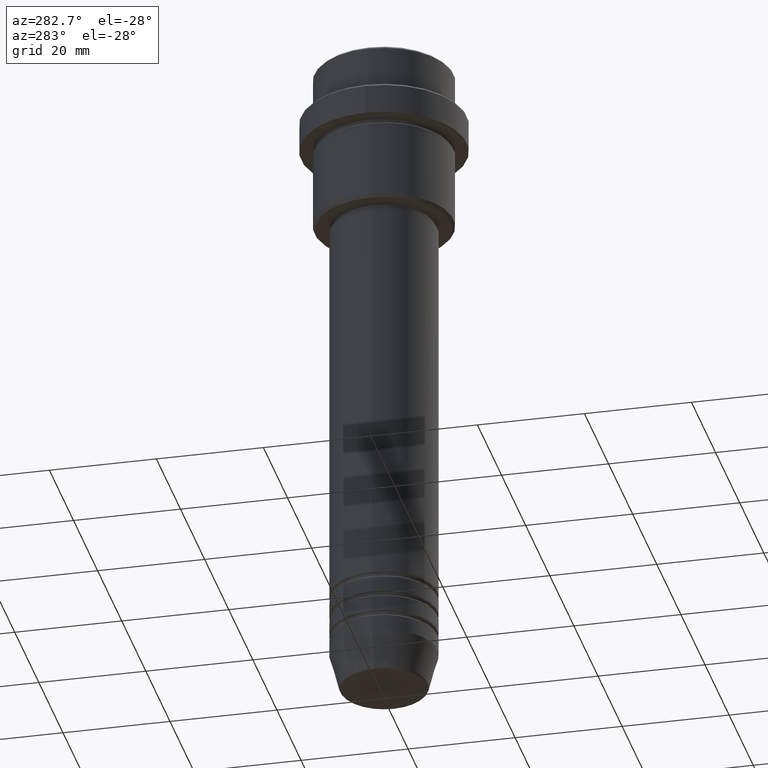
[diagram: clean part render]
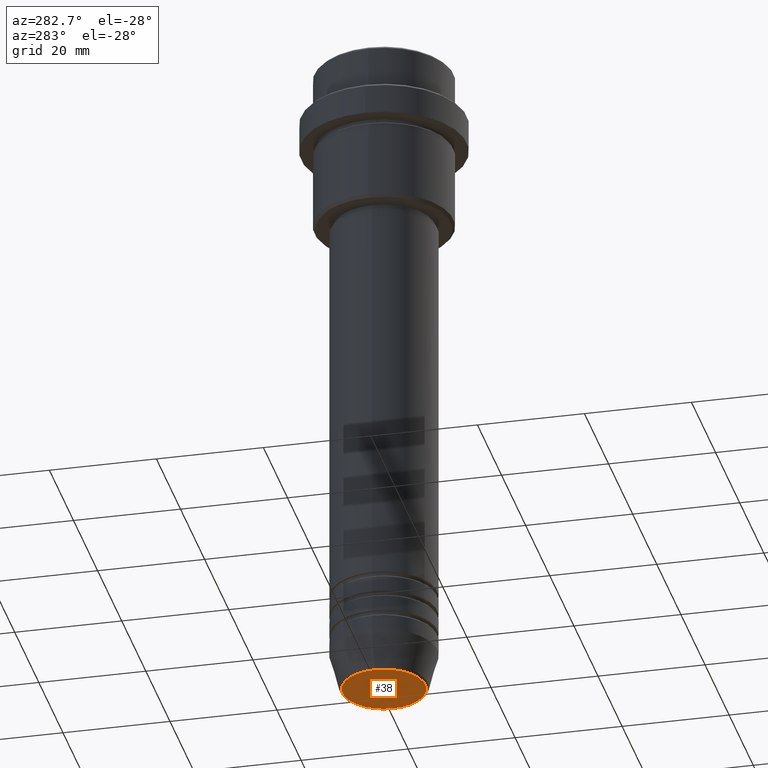
[diagram: same view with one face highlighted and labeled with its STEP entity id]
A machine part, auxiliary view. The second image highlights one B-rep face of the part: STEP entity #38.
In plain terms, the highlighted planar face has unit normal (0, -0, 1).
Its self-contained STEP definition (entity closure, byte-faithful):
#38 = ADVANCED_FACE ( 'NONE', ( #206 ), #1156, .F. ) ;
#114 = DIRECTION ( 'NONE',  ( 0.000000000000000000, -0.000000000000000000, 1.000000000000000000 ) ) ;
#206 = FACE_OUTER_BOUND ( 'NONE', #1219, .T. ) ;
#252 = AXIS2_PLACEMENT_3D ( 'NONE', #895, #688, #1124 ) ;
#339 = DIRECTION ( 'NONE',  ( 1.000000000000000000, 0.000000000000000000, 0.000000000000000000 ) ) ;
#385 = CARTESIAN_POINT ( 'NONE',  ( -7.740692158992654726, 9.775343368540039135E-16, -126.0000000000000000 ) ) ;
#452 = CARTESIAN_POINT ( 'NONE',  ( 7.740692158992654726, 0.000000000000000000, -126.0000000000000000 ) ) ;
#457 = AXIS2_PLACEMENT_3D ( 'NONE', #752, #1313, #339 ) ;
#590 = EDGE_CURVE ( 'NONE', #746, #1414, #731, .T. ) ;
#680 = AXIS2_PLACEMENT_3D ( 'NONE', #1385, #114, #1346 ) ;
#688 = DIRECTION ( 'NONE',  ( 0.000000000000000000, 0.000000000000000000, -1.000000000000000000 ) ) ;
#731 = CIRCLE ( 'NONE', #252, 7.740692158992654726 ) ;
#746 = VERTEX_POINT ( 'NONE', #385 ) ;
#752 = CARTESIAN_POINT ( 'NONE',  ( 0.000000000000000000, 0.000000000000000000, -126.0000000000000000 ) ) ;
#888 = CIRCLE ( 'NONE', #457, 7.740692158992654726 ) ;
#895 = CARTESIAN_POINT ( 'NONE',  ( 0.000000000000000000, 0.000000000000000000, -126.0000000000000000 ) ) ;
#1124 = DIRECTION ( 'NONE',  ( 1.000000000000000000, 0.000000000000000000, 0.000000000000000000 ) ) ;
#1156 = PLANE ( 'NONE',  #680 ) ;
#1172 = ORIENTED_EDGE ( 'NONE', *, *, #590, .T. ) ;
#1219 = EDGE_LOOP ( 'NONE', ( #1354, #1172 ) ) ;
#1291 = EDGE_CURVE ( 'NONE', #1414, #746, #888, .T. ) ;
#1313 = DIRECTION ( 'NONE',  ( 0.000000000000000000, 0.000000000000000000, -1.000000000000000000 ) ) ;
#1346 = DIRECTION ( 'NONE',  ( 1.000000000000000000, 0.000000000000000000, 0.000000000000000000 ) ) ;
#1354 = ORIENTED_EDGE ( 'NONE', *, *, #1291, .T. ) ;
#1385 = CARTESIAN_POINT ( 'NONE',  ( 0.000000000000000000, 0.000000000000000000, -126.0000000000000000 ) ) ;
#1414 = VERTEX_POINT ( 'NONE', #452 ) ;